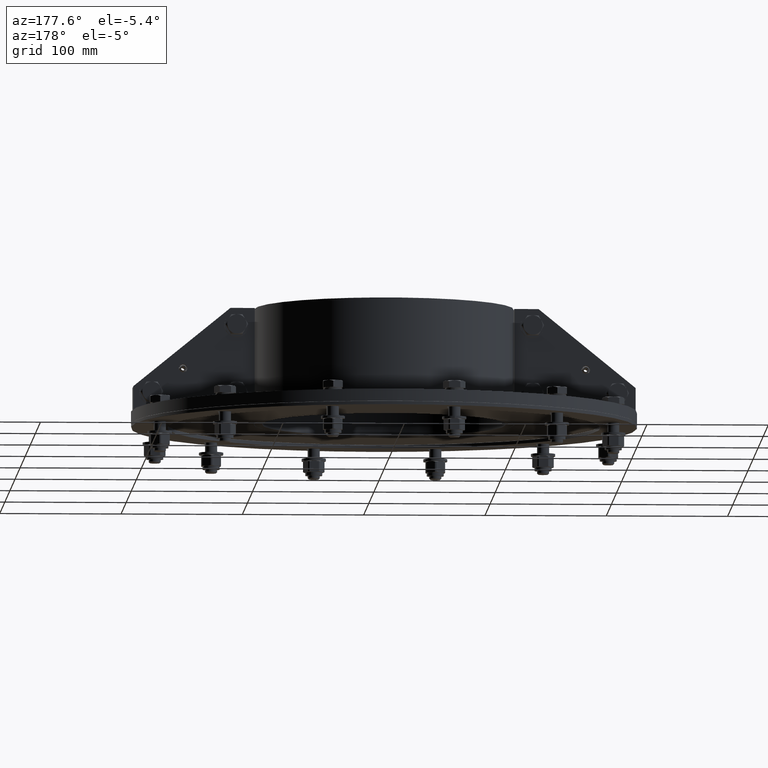
[diagram: clean part render]
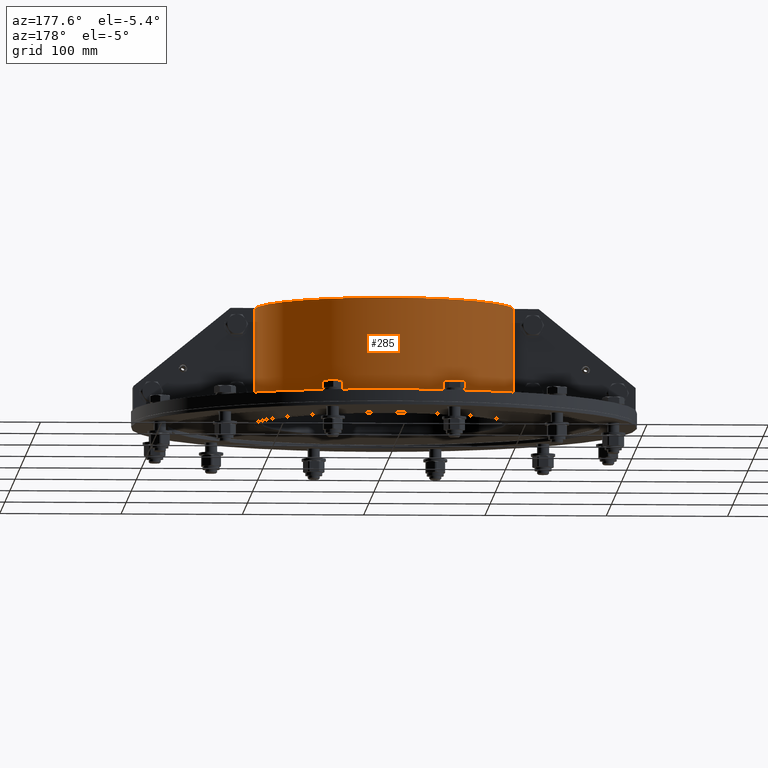
[diagram: same view with one face highlighted and labeled with its STEP entity id]
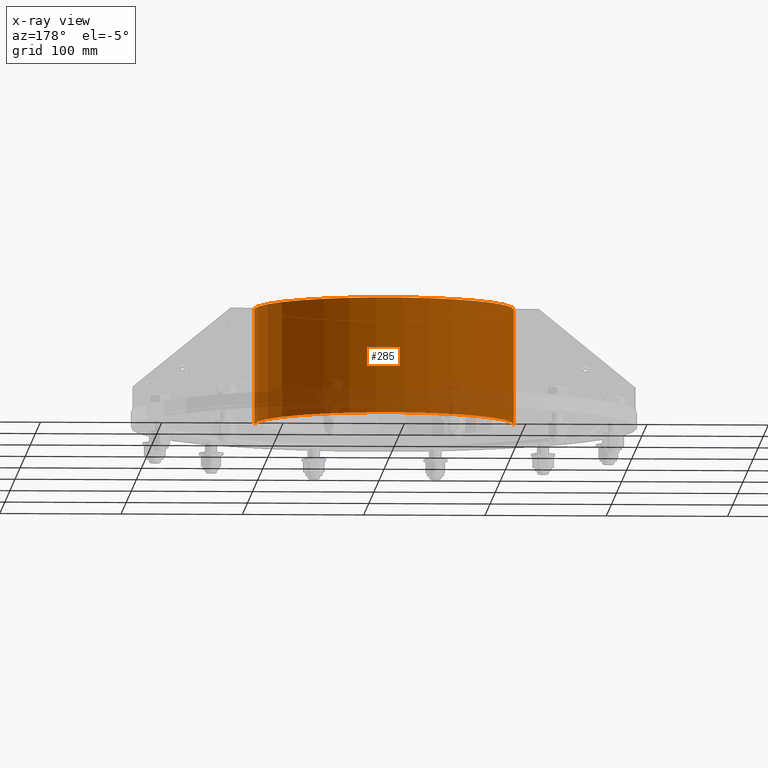
[diagram: x-ray of the same camera — body ghosted, the highlighted face saturated]
A machine part, auxiliary view. The second image highlights one B-rep face of the part: STEP entity #285.
The next image is the same camera in x-ray: the body ghosted, the highlighted face saturated — about 19% of this face is hidden behind the body in this view.
In plain terms, the highlighted cylindrical surface (partial cylindrical patch) has radius 107 mm, axis along (-0, -0, 1).
Its self-contained STEP definition (entity closure, byte-faithful):
#151=CARTESIAN_POINT('',(106.99981308394889,0.2,95.0));
#152=VERTEX_POINT('',#151);
#153=CARTESIAN_POINT('',(106.99981308394889,0.2,0.0));
#154=VERTEX_POINT('',#153);
#155=CARTESIAN_POINT('',(106.99981308394889,0.2,95.0));
#156=DIRECTION('',(0.0,0.0,-1.0));
#157=VECTOR('',#156,95.0);
#158=LINE('',#155,#157);
#159=EDGE_CURVE('',#152,#154,#158,.T.);
#191=CARTESIAN_POINT('',(-106.99981308394889,0.2,0.0));
#192=VERTEX_POINT('',#191);
#193=CARTESIAN_POINT('',(-106.99981308394889,0.2,95.0));
#194=VERTEX_POINT('',#193);
#195=CARTESIAN_POINT('',(-106.99981308394889,0.2,0.0));
#196=DIRECTION('',(0.0,0.0,1.0));
#197=VECTOR('',#196,95.0);
#198=LINE('',#195,#197);
#199=EDGE_CURVE('',#192,#194,#198,.T.);
#232=CARTESIAN_POINT('',(0.0,0.0,0.0));
#233=DIRECTION('',(0.0,0.0,-1.0));
#234=DIRECTION('',(-1.0,0.0,0.0));
#235=AXIS2_PLACEMENT_3D('',#232,#233,#234);
#236=CIRCLE('',#235,107.00000000000001);
#237=EDGE_CURVE('',#192,#154,#236,.T.);
#268=CARTESIAN_POINT('',(0.0,0.0,0.0));
#269=DIRECTION('',(0.0,0.0,1.0));
#270=DIRECTION('',(-1.0,0.0,0.0));
#271=AXIS2_PLACEMENT_3D('',#268,#269,#270);
#272=CYLINDRICAL_SURFACE('',#271,107.00000000000001);
#273=ORIENTED_EDGE('',*,*,#199,.T.);
#274=CARTESIAN_POINT('',(0.0,0.0,95.0));
#275=DIRECTION('',(0.0,0.0,-1.0));
#276=DIRECTION('',(-1.0,0.0,0.0));
#277=AXIS2_PLACEMENT_3D('',#274,#275,#276);
#278=CIRCLE('',#277,107.00000000000001);
#279=EDGE_CURVE('',#194,#152,#278,.T.);
#280=ORIENTED_EDGE('',*,*,#279,.T.);
#281=ORIENTED_EDGE('',*,*,#159,.T.);
#282=ORIENTED_EDGE('',*,*,#237,.F.);
#283=EDGE_LOOP('',(#273,#280,#281,#282));
#284=FACE_OUTER_BOUND('',#283,.T.);
#285=ADVANCED_FACE('',(#284),#272,.T.);